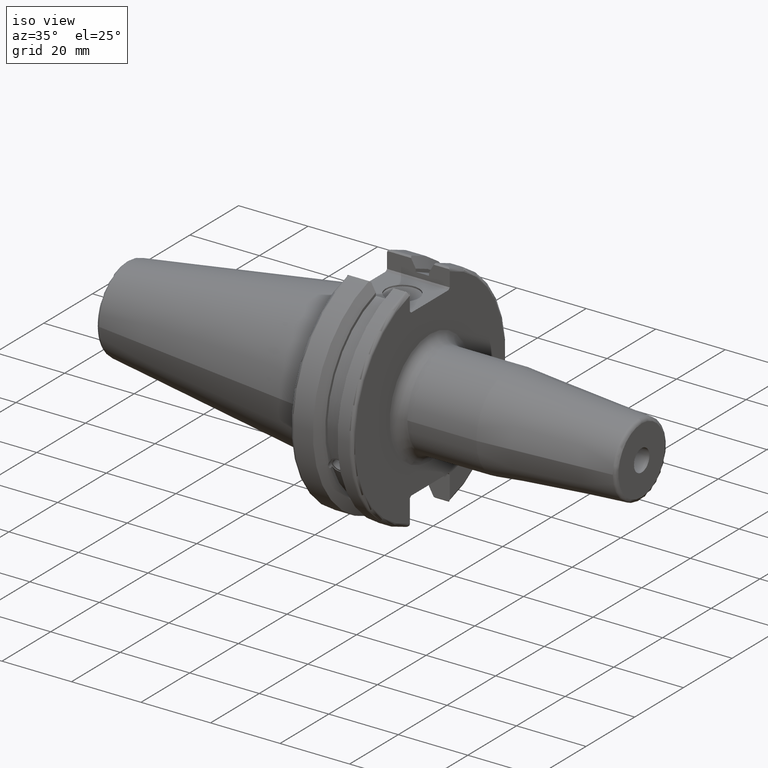
[diagram: clean part render]
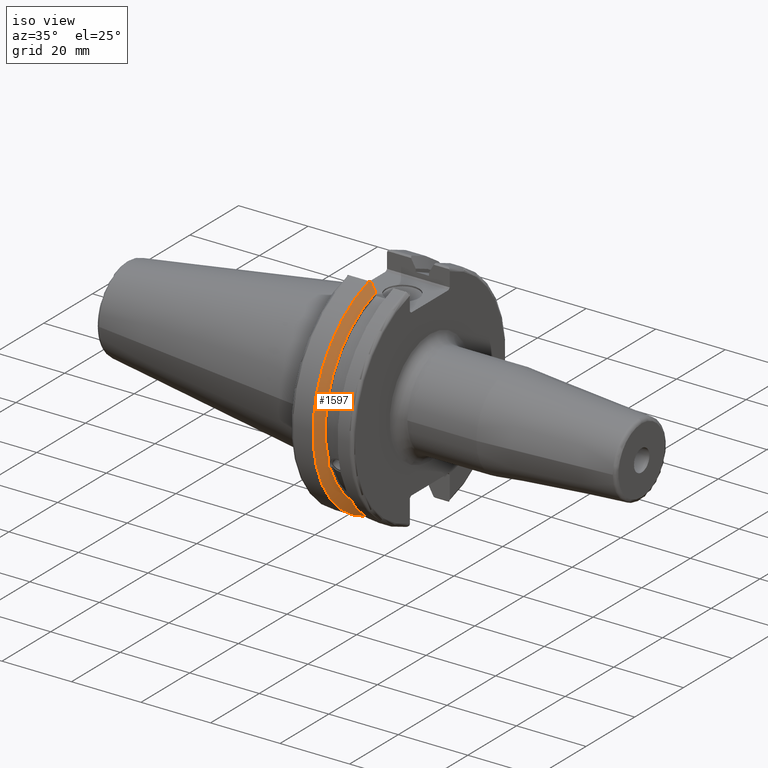
[diagram: same view with one face highlighted and labeled with its STEP entity id]
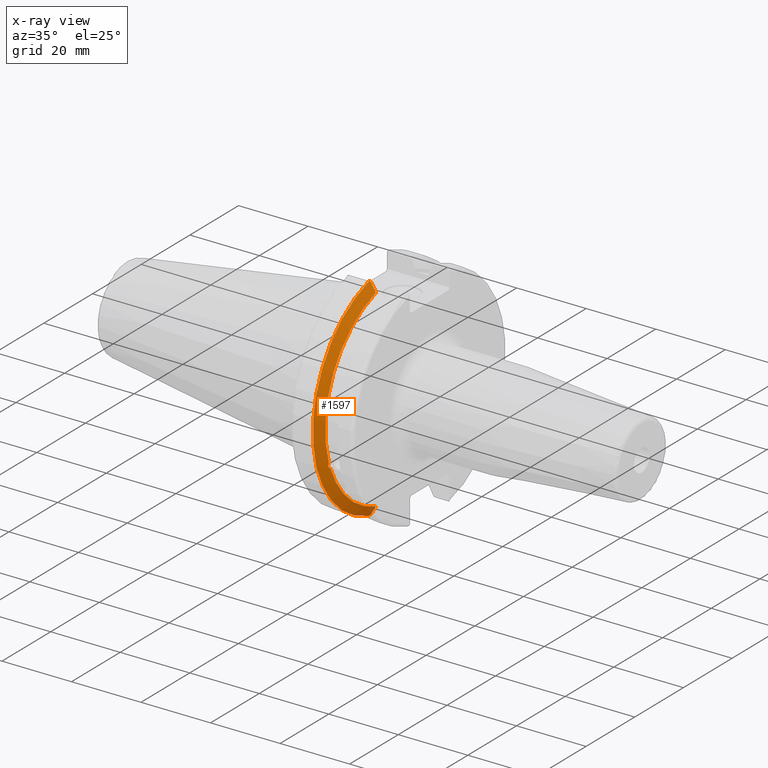
[diagram: x-ray of the same camera — body ghosted, the highlighted face saturated]
A machine part, iso view. The second image highlights one B-rep face of the part: STEP entity #1597.
The next image is the same camera in x-ray: the body ghosted, the highlighted face saturated — about 1% of this face is hidden behind the body in this view.
In plain terms, the highlighted conical surface has half-angle 60 deg.
Its self-contained STEP definition (entity closure, byte-faithful):
#25=(
BOUNDED_CURVE()
B_SPLINE_CURVE(2,(#2838,#2839,#2840),.UNSPECIFIED.,.F.,.F.)
B_SPLINE_CURVE_WITH_KNOTS((3,3),(0.,0.27654914279601),.UNSPECIFIED.)
CURVE()
GEOMETRIC_REPRESENTATION_ITEM()
RATIONAL_B_SPLINE_CURVE((1.,1.00095203903532,1.00031614444885))
REPRESENTATION_ITEM('')
);
#26=(
BOUNDED_CURVE()
B_SPLINE_CURVE(2,(#2850,#2851,#2852),.UNSPECIFIED.,.F.,.F.)
B_SPLINE_CURVE_WITH_KNOTS((3,3),(0.0550586467392668,0.331607789535851),
 .UNSPECIFIED.)
CURVE()
GEOMETRIC_REPRESENTATION_ITEM()
RATIONAL_B_SPLINE_CURVE((1.0003161444496,1.00095203903759,1.))
REPRESENTATION_ITEM('')
);
#27=(
BOUNDED_CURVE()
B_SPLINE_CURVE(2,(#2889,#2890,#2891),.UNSPECIFIED.,.F.,.F.)
B_SPLINE_CURVE_WITH_KNOTS((3,3),(0.,0.0639048713675873),.UNSPECIFIED.)
CURVE()
GEOMETRIC_REPRESENTATION_ITEM()
RATIONAL_B_SPLINE_CURVE((1.,1.00028444218292,1.00047644010589))
REPRESENTATION_ITEM('')
);
#28=(
BOUNDED_CURVE()
B_SPLINE_CURVE(2,(#2897,#2898,#2899),.UNSPECIFIED.,.F.,.F.)
B_SPLINE_CURVE_WITH_KNOTS((3,3),(0.329353533631225,0.393258405001025),
 .UNSPECIFIED.)
CURVE()
GEOMETRIC_REPRESENTATION_ITEM()
RATIONAL_B_SPLINE_CURVE((1.00047644010574,1.00028444218284,1.))
REPRESENTATION_ITEM('')
);
#57=B_SPLINE_CURVE_WITH_KNOTS('',3,(#2479,#2480,#2481,#2482,#2483,#2484,
#2485,#2486,#2487,#2488,#2489,#2490,#2491,#2492),.UNSPECIFIED.,.F.,.F.,
(4,2,2,2,2,2,4),(0.451995700189025,0.464547828547661,0.504528771685166,
0.544509714822671,0.584490657960176,0.624471601097681,0.637023729456317),
 .UNSPECIFIED.);
#369=CONICAL_SURFACE('',#1798,30.3546886482472,1.0471975511966);
#453=FACE_OUTER_BOUND('',#557,.T.);
#557=EDGE_LOOP('',(#1480,#1481,#1482,#1483,#1484,#1485,#1486,#1487));
#594=CIRCLE('',#1691,28.9593772964944);
#612=CIRCLE('',#1742,31.75);
#635=CIRCLE('',#1799,28.9593772964944);
#683=VERTEX_POINT('',#2476);
#684=VERTEX_POINT('',#2478);
#701=VERTEX_POINT('',#2571);
#751=VERTEX_POINT('',#2835);
#752=VERTEX_POINT('',#2837);
#755=VERTEX_POINT('',#2849);
#761=VERTEX_POINT('',#2887);
#762=VERTEX_POINT('',#2893);
#853=EDGE_CURVE('',#684,#683,#57,.T.);
#877=EDGE_CURVE('',#684,#701,#594,.T.);
#948=EDGE_CURVE('',#752,#751,#25,.T.);
#954=EDGE_CURVE('',#755,#701,#26,.T.);
#964=EDGE_CURVE('',#761,#751,#27,.T.);
#966=EDGE_CURVE('',#761,#762,#612,.T.);
#967=EDGE_CURVE('',#755,#762,#28,.T.);
#1027=EDGE_CURVE('',#752,#683,#635,.T.);
#1480=ORIENTED_EDGE('',*,*,#853,.T.);
#1481=ORIENTED_EDGE('',*,*,#1027,.F.);
#1482=ORIENTED_EDGE('',*,*,#948,.T.);
#1483=ORIENTED_EDGE('',*,*,#964,.F.);
#1484=ORIENTED_EDGE('',*,*,#966,.T.);
#1485=ORIENTED_EDGE('',*,*,#967,.F.);
#1486=ORIENTED_EDGE('',*,*,#954,.T.);
#1487=ORIENTED_EDGE('',*,*,#877,.F.);
#1597=ADVANCED_FACE('',(#453),#369,.T.);
#1691=AXIS2_PLACEMENT_3D('',#2572,#1970,#1971);
#1742=AXIS2_PLACEMENT_3D('',#2895,#2107,#2108);
#1798=AXIS2_PLACEMENT_3D('',#3049,#2249,#2250);
#1799=AXIS2_PLACEMENT_3D('',#3050,#2251,#2252);
#1970=DIRECTION('center_axis',(1.,0.,0.));
#1971=DIRECTION('ref_axis',(0.,0.,-1.));
#2107=DIRECTION('center_axis',(1.,0.,0.));
#2108=DIRECTION('ref_axis',(0.,0.,-1.));
#2249=DIRECTION('center_axis',(-1.,0.,0.));
#2250=DIRECTION('ref_axis',(0.,-1.,-1.22464679914735E-16));
#2251=DIRECTION('center_axis',(1.,0.,0.));
#2252=DIRECTION('ref_axis',(0.,0.,-1.));
#2476=CARTESIAN_POINT('',(9.261,-27.4956274489925,-9.09043478536247));
#2478=CARTESIAN_POINT('',(9.261,-26.9060914640648,-10.7101715919071));
#2479=CARTESIAN_POINT('Ctrl Pts',(9.26099999999999,-26.9060914640648,-10.7101715919071));
#2480=CARTESIAN_POINT('Ctrl Pts',(9.24687959280038,-26.9406927482839,-10.6893765730703));
#2481=CARTESIAN_POINT('Ctrl Pts',(9.23340701821433,-26.9744191989197,-10.6676007180673));
#2482=CARTESIAN_POINT('Ctrl Pts',(9.18001855884095,-27.1113422433189,-10.5723885976054));
#2483=CARTESIAN_POINT('Ctrl Pts',(9.14188029158246,-27.2180531796526,-10.4801333026531));
#2484=CARTESIAN_POINT('Ctrl Pts',(9.08968935539424,-27.3968610665578,-10.2639559818059));
#2485=CARTESIAN_POINT('Ctrl Pts',(9.076,-27.4684373304961,-10.139516340139));
#2486=CARTESIAN_POINT('Ctrl Pts',(9.076,-27.559599249844,-9.8890510252165));
#2487=CARTESIAN_POINT('Ctrl Pts',(9.08968935539424,-27.5847569104122,-9.74771639360671));
#2488=CARTESIAN_POINT('Ctrl Pts',(9.14188029158246,-27.5867382255984,-9.46717946402648));
#2489=CARTESIAN_POINT('Ctrl Pts',(9.18001855884095,-27.5642934663232,-9.32791534028656));
#2490=CARTESIAN_POINT('Ctrl Pts',(9.23340701821433,-27.5206055003512,-9.16696618806878));
#2491=CARTESIAN_POINT('Ctrl Pts',(9.24687959280038,-27.5087667900418,-9.12860597076218));
#2492=CARTESIAN_POINT('Ctrl Pts',(9.261,-27.4956274489925,-9.09043478536247));
#2571=CARTESIAN_POINT('',(9.261,-8.19,-27.7771386827498));
#2572=CARTESIAN_POINT('Origin',(9.261,0.,0.));
#2835=CARTESIAN_POINT('',(7.92858530351256,-8.19,30.1755016258903));
#2837=CARTESIAN_POINT('',(9.261,-8.19,27.7771386827498));
#2838=CARTESIAN_POINT('Ctrl Pts',(9.261,-8.19,27.7771386827498));
#2839=CARTESIAN_POINT('Ctrl Pts',(8.62236356152083,-8.19,28.930368953976));
#2840=CARTESIAN_POINT('Ctrl Pts',(7.92858530351256,-8.19,30.1755016258903));
#2849=CARTESIAN_POINT('',(7.92858530351256,-8.19,-30.1755016258903));
#2850=CARTESIAN_POINT('Ctrl Pts',(7.92858530351256,-8.19,-30.1755016258903));
#2851=CARTESIAN_POINT('Ctrl Pts',(8.62236356152658,-8.19,-28.9303689539657));
#2852=CARTESIAN_POINT('Ctrl Pts',(9.261,-8.19,-27.7771386827498));
#2887=CARTESIAN_POINT('',(7.64983323092436,-8.67204822802685,30.5427254764662));
#2889=CARTESIAN_POINT('Ctrl Pts',(7.64983323092436,-8.67204822802685,30.5427254764662));
#2890=CARTESIAN_POINT('Ctrl Pts',(7.79089148121629,-8.42917748262643,30.357706789263));
#2891=CARTESIAN_POINT('Ctrl Pts',(7.92858530351256,-8.19,30.1755016258903));
#2893=CARTESIAN_POINT('',(7.64983323092436,-8.67204822802685,-30.5427254764662));
#2895=CARTESIAN_POINT('Origin',(7.64983323092436,0.,0.));
#2897=CARTESIAN_POINT('Ctrl Pts',(7.92858530351256,-8.19,-30.1755016258903));
#2898=CARTESIAN_POINT('Ctrl Pts',(7.7908914812116,-8.42917748263465,-30.3577067892692));
#2899=CARTESIAN_POINT('Ctrl Pts',(7.64983323092436,-8.67204822802686,-30.5427254764662));
#3049=CARTESIAN_POINT('Origin',(8.45541661546218,0.,0.));
#3050=CARTESIAN_POINT('Origin',(9.261,0.,0.));